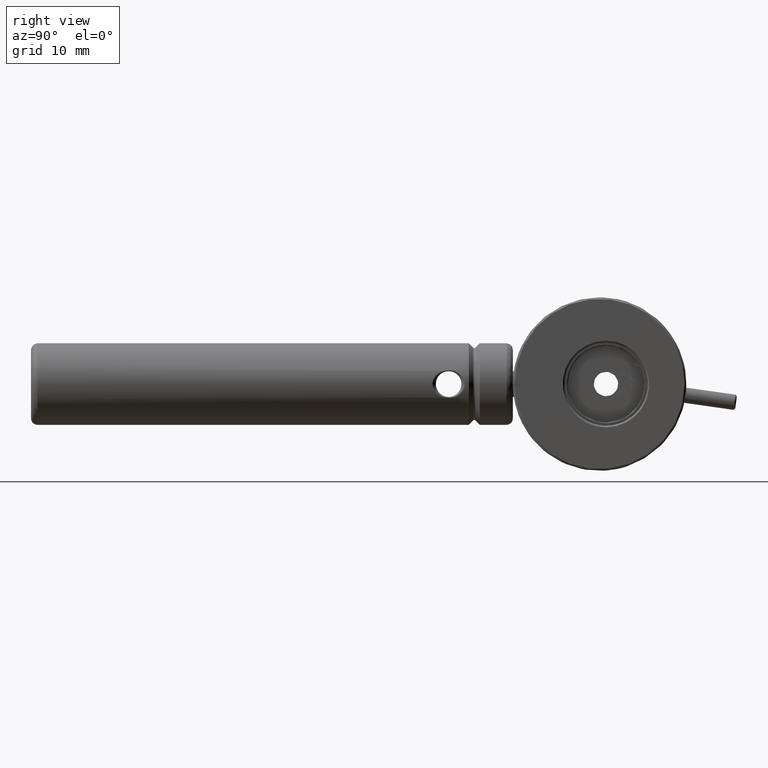
[diagram: clean part render]
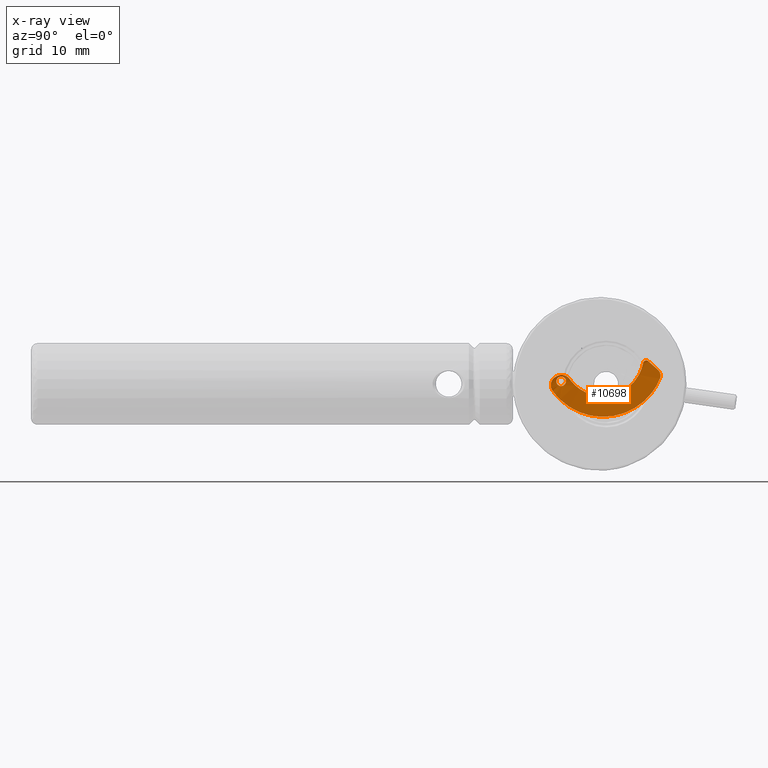
[diagram: x-ray — body ghosted, one internal face saturated and labeled with its STEP entity id]
A machine part, right view, then the same camera in x-ray: the body is ghosted and one INTERNAL B-rep face — a face not visible from any outside direction — is saturated and labeled: STEP entity #10698.
In plain terms, the highlighted planar face has unit normal (1, 0, 0).
Its self-contained STEP definition (entity closure, byte-faithful):
#18 = CARTESIAN_POINT ( 'NONE',  ( 4.134389209459748749, -0.3309700505462234155, -29.90294478753381568 ) ) ;
#44 = CARTESIAN_POINT ( 'NONE',  ( 4.209389209459748038, 11.53287536385122891, -26.61470385793699123 ) ) ;
#47 = CARTESIAN_POINT ( 'NONE',  ( 4.284389209459748216, -1.775680032492571003, -32.97902042832691905 ) ) ;
#54 = CARTESIAN_POINT ( 'NONE',  ( 4.284389209459747327, 12.06381717960713829, -31.52353523066276608 ) ) ;
#72 = CARTESIAN_POINT ( 'NONE',  ( 4.209389209459748038, 11.53287536385122891, -26.61470385793699123 ) ) ;
#73 = CARTESIAN_POINT ( 'NONE',  ( 4.134389209459748749, -0.001683951558443235819, -30.23789130076048792 ) ) ;
#118 = CARTESIAN_POINT ( 'NONE',  ( 4.284389209459747327, 13.35724633702866271, -28.42044901124513956 ) ) ;
#134 = CARTESIAN_POINT ( 'NONE',  ( 4.134389209459749637, 0.3227295016149438478, -30.52999766902324552 ) ) ;
#173 = CARTESIAN_POINT ( 'NONE',  ( 4.284389209459747327, 2.911488783379804435, -35.14886943573260680 ) ) ;
#238 = CARTESIAN_POINT ( 'NONE',  ( 4.284389209459748216, 13.38566703116448409, -28.51033356918940953 ) ) ;
#250 = ORIENTED_EDGE ( 'NONE', *, *, #5402, .F. ) ;
#294 = CARTESIAN_POINT ( 'NONE',  ( 4.284389209459747327, 13.42014298329969968, -29.00759932906902350 ) ) ;
#354 = CARTESIAN_POINT ( 'NONE',  ( 4.284389209459747327, 13.39271227548522880, -29.15484073054876646 ) ) ;
#473 = ORIENTED_EDGE ( 'NONE', *, *, #11508, .F. ) ;
#586 = CARTESIAN_POINT ( 'NONE',  ( 4.284389209459748216, -2.081752349696528004, -28.74346746129045016 ) ) ;
#775 = EDGE_CURVE ( 'NONE', #2590, #11444, #6406, .T. ) ;
#841 = B_SPLINE_CURVE_WITH_KNOTS ( 'NONE', 3,
 ( #9183, #7221, #1787, #72 ),
 .UNSPECIFIED., .F., .F.,
 ( 4, 4 ),
 ( 0.000000000000000000, 1.000000000000000000 ),
 .UNSPECIFIED. ) ;
#845 = CARTESIAN_POINT ( 'NONE',  ( 4.134389209459748749, 3.872416330809026253, -32.04470640214832144 ) ) ;
#943 = CARTESIAN_POINT ( 'NONE',  ( 4.284389209459748216, 11.85877373959887926, -31.78266134384898933 ) ) ;
#1008 = CARTESIAN_POINT ( 'NONE',  ( 4.134389209459748749, 9.942266229406181210, -28.91423452764975721 ) ) ;
#1022 = CARTESIAN_POINT ( 'NONE',  ( 4.134389209459748749, 4.947442641856741652, -32.02889801677270043 ) ) ;
#1107 = CARTESIAN_POINT ( 'NONE',  ( 4.284389209459747327, -2.793532869852088485, -28.96838546970037953 ) ) ;
#1119 = CARTESIAN_POINT ( 'NONE',  ( 4.134389209459747860, -2.189442020362582841, -30.49266721107752431 ) ) ;
#1127 = CARTESIAN_POINT ( 'NONE',  ( 4.134389209459748749, 9.328074295452159603, -29.80790064011744178 ) ) ;
#1222 = B_SPLINE_CURVE_WITH_KNOTS ( 'NONE', 3,
 ( #44, #8663, #8447, #3961, #8560, #5923, #8611, #3064, #8500, #9333 ),
 .UNSPECIFIED., .F., .F.,
 ( 4, 2, 2, 2, 4 ),
 ( 0.000000000000000000, 0.2500000000000000000, 0.5000000000000000000, 0.7500000000000000000, 1.000000000000000000 ),
 .UNSPECIFIED. ) ;
#1237 = CARTESIAN_POINT ( 'NONE',  ( 4.134389209459748749, 7.561737153812784662, -31.28428219642291452 ) ) ;
#1404 = CARTESIAN_POINT ( 'NONE',  ( 4.284389209459749104, -1.660955965162871806, -28.76715948988344351 ) ) ;
#1575 = CARTESIAN_POINT ( 'NONE',  ( 4.284389209459746439, -0.2829318885757580726, -34.06999033790363995 ) ) ;
#1625 = B_SPLINE_CURVE_WITH_KNOTS ( 'NONE', 3,
 ( #2777, #1119, #6422, #6544, #4579, #6603, #10115, #11122, #8403, #5655 ),
 .UNSPECIFIED., .F., .F.,
 ( 4, 2, 2, 2, 4 ),
 ( 0.000000000000000000, 0.2500000000000000000, 0.5000000000000000000, 0.7500000000000000000, 1.000000000000000000 ),
 .UNSPECIFIED. ) ;
#1649 = CARTESIAN_POINT ( 'NONE',  ( 4.284389209459748216, -3.678576029199008612, -30.15535420923015764 ) ) ;
#1730 = CARTESIAN_POINT ( 'NONE',  ( 4.134389209459747860, 3.306350701035032813, -31.94441890351051683 ) ) ;
#1734 = CARTESIAN_POINT ( 'NONE',  ( 4.134389209459748749, 4.947442641856741652, -32.02889801677270043 ) ) ;
#1787 = CARTESIAN_POINT ( 'NONE',  ( 4.284389209459747327, 12.03162968237498376, -27.05889279910989487 ) ) ;
#1815 = CARTESIAN_POINT ( 'NONE',  ( 4.284389209459747327, -3.156089213020860207, -31.54272849285429814 ) ) ;
#1898 = CARTESIAN_POINT ( 'NONE',  ( 4.134389209459748749, 9.862163449711479402, -29.04798773407492618 ) ) ;
#1937 = CARTESIAN_POINT ( 'NONE',  ( 4.284389209459747327, -3.561479917151381347, -29.72525265011231710 ) ) ;
#2001 = CARTESIAN_POINT ( 'NONE',  ( 4.284389209459747327, 11.96134019194015252, -31.65456415424835868 ) ) ;
#2008 = CARTESIAN_POINT ( 'NONE',  ( 4.134389209459748749, 6.624855190189506970, -31.66770650345844373 ) ) ;
#2245 = CARTESIAN_POINT ( 'NONE',  ( 4.284389209459747327, -2.270535692337718459, -28.76093296499469076 ) ) ;
#2353 = CARTESIAN_POINT ( 'NONE',  ( 4.209389209459748038, -0.7418880610999190051, -29.36930212669630080 ) ) ;
#2406 = CARTESIAN_POINT ( 'NONE',  ( 4.134389209459748749, -1.354384977549951019, -30.06801024032385072 ) ) ;
#2590 = VERTEX_POINT ( 'NONE', #4323 ) ;
#2664 = CARTESIAN_POINT ( 'NONE',  ( 4.284389209459748216, 9.550679817949589534, -33.85453369463002815 ) ) ;
#2692 = ORIENTED_EDGE ( 'NONE', *, *, #6003, .F. ) ;
#2777 = CARTESIAN_POINT ( 'NONE',  ( 4.134389209459748749, -1.993685719852399396, -30.47741555535359126 ) ) ;
#2864 = CARTESIAN_POINT ( 'NONE',  ( 4.134389209459750525, 0.2979779620119864525, -30.50884311429219764 ) ) ;
#2899 = CARTESIAN_POINT ( 'NONE',  ( 4.284389209459745551, 10.59960833504224631, -33.05983296242331448 ) ) ;
#2906 = CARTESIAN_POINT ( 'NONE',  ( 4.284389209459747327, 13.31836297844598604, -28.33459311816970683 ) ) ;
#3026 = CARTESIAN_POINT ( 'NONE',  ( 4.209389209459748038, 13.02913831942250056, -27.94727068145570570 ) ) ;
#3064 = CARTESIAN_POINT ( 'NONE',  ( 4.284389209459748216, 10.76495619345340415, -26.72622094159164874 ) ) ;
#3209 = AXIS2_PLACEMENT_3D ( 'NONE', #7881, #11506, #7826 ) ;
#3363 = CARTESIAN_POINT ( 'NONE',  ( 4.134389209459748749, -1.319460420325664796, -29.47566823245031387 ) ) ;
#3370 = CARTESIAN_POINT ( 'NONE',  ( 4.284389209459748216, -2.431295474410883894, -28.80364786432926039 ) ) ;
#3430 = CARTESIAN_POINT ( 'NONE',  ( 4.284389209459749104, 0.9173878240280927132, -34.60946496684858431 ) ) ;
#3453 = EDGE_CURVE ( 'NONE', #11444, #2590, #1625, .T. ) ;
#3480 = CARTESIAN_POINT ( 'NONE',  ( 4.134389209459749637, -1.713614079631466502, -29.03212379065805138 ) ) ;
#3545 = ORIENTED_EDGE ( 'NONE', *, *, #9871, .T. ) ;
#3553 = CARTESIAN_POINT ( 'NONE',  ( 4.209389209459748038, 13.34230277311566759, -29.29629330479995630 ) ) ;
#3554 = B_SPLINE_CURVE_WITH_KNOTS ( 'NONE', 3,
 ( #8212, #1815, #5464, #9095, #8086, #4508, #47, #6114, #9744, #1575, #3430, #10697, #9799, #8920, #7439, #173, #11064, #3675, #5413, #5653, #5592, #7316, #8156, #8336, #9042, #11782, #4634, #2664, #2899, #5472, #6300, #943, #2001, #6541, #54, #6483, #3619, #3553 ),
 .UNSPECIFIED., .F., .F.,
 ( 4, 1, 1, 1, 2, 2, 2, 1, 1, 1, 2, 2, 2, 1, 1, 1, 2, 2, 2, 1, 1, 1, 2, 2, 4 ),
 ( 0.000000000000000000, 0.06249999999999626688, 0.09374999999999439337, 0.1093749999999934636, 0.1171874999999930056, 0.1249999999999925338, 0.2499999999999946709, 0.3124999999999957812, 0.3437499999999961697, 0.3593749999999963363, 0.3671874999999963363, 0.3749999999999962808, 0.4999999999999948930, 0.5624999999999942268, 0.5937499999999938938, 0.6093749999999936717, 0.6171874999999936717, 0.6249999999999935607, 0.7499999999999924505, 0.8124999999999916733, 0.8437499999999913403, 0.8593749999999911182, 0.8671874999999913403, 0.8749999999999916733, 1.000000000000000000 ),
 .UNSPECIFIED. ) ;
#3619 = CARTESIAN_POINT ( 'NONE',  ( 4.284389209459747327, 13.02299882543045406, -30.07976592429267981 ) ) ;
#3639 = CARTESIAN_POINT ( 'NONE',  ( 4.134389209459750525, 0.7781641421455078866, -30.91288174440323644 ) ) ;
#3675 = CARTESIAN_POINT ( 'NONE',  ( 4.284389209459747327, 3.855909933160590164, -35.29189937841742619 ) ) ;
#3745 = CARTESIAN_POINT ( 'NONE',  ( 4.284389209459747327, 13.27397389341639311, -28.24910886975350977 ) ) ;
#3810 = CARTESIAN_POINT ( 'NONE',  ( 4.284389209459748216, 13.29011570284712285, -28.27825111497917376 ) ) ;
#3919 = CARTESIAN_POINT ( 'NONE',  ( 4.284389209459746439, 13.11959460416090550, -28.02783074850296074 ) ) ;
#3961 = CARTESIAN_POINT ( 'NONE',  ( 4.284389209459747327, 11.21254862149817377, -26.48020347015619791 ) ) ;
#3979 = CARTESIAN_POINT ( 'NONE',  ( 4.209389209459748038, 13.34230277311566759, -29.29629330479995630 ) ) ;
#3982 = CARTESIAN_POINT ( 'NONE',  ( 4.134389209459749637, 8.159317082984346214, -30.90888053737445773 ) ) ;
#4098 = B_SPLINE_CURVE_WITH_KNOTS ( 'NONE', 3,
 ( #6549, #7622, #354, #5659, #294, #4704, #9172, #10177, #238, #118, #2906, #3810, #3745, #11125, #3919, #3026 ),
 .UNSPECIFIED., .F., .F.,
 ( 4, 1, 2, 2, 2, 1, 2, 2, 4 ),
 ( 0.000000000000000000, 0.1250000000000041633, 0.1875000000000027200, 0.2500000000000012768, 0.5000000000000025535, 0.6249999999999998890, 0.6874999999999980016, 0.7499999999999961142, 1.000000000000000000 ),
 .UNSPECIFIED. ) ;
#4147 = CARTESIAN_POINT ( 'NONE',  ( 4.284389209459747327, -2.013393963355786909, -28.73958939877647367 ) ) ;
#4208 = CARTESIAN_POINT ( 'NONE',  ( 4.284389209459748216, -0.9787892789496069890, -29.10647850367476153 ) ) ;
#4251 = EDGE_LOOP ( 'NONE', ( #473, #250, #11350, #4686, #8756, #2692, #3545, #4325 ) ) ;
#4262 = CARTESIAN_POINT ( 'NONE',  ( 4.134389209459749637, -1.609657094278000189, -30.36642055379877192 ) ) ;
#4267 = CARTESIAN_POINT ( 'NONE',  ( 4.284389209459747327, -2.057989771632283915, -28.74175827772800673 ) ) ;
#4323 = CARTESIAN_POINT ( 'NONE',  ( 4.134389209459748749, -2.110199786994817472, -28.98194757770982832 ) ) ;
#4325 = ORIENTED_EDGE ( 'NONE', *, *, #5919, .T. ) ;
#4429 = VERTEX_POINT ( 'NONE', #6440 ) ;
#4488 = VERTEX_POINT ( 'NONE', #5839 ) ;
#4508 = CARTESIAN_POINT ( 'NONE',  ( 4.284389209459747327, -1.855632089759796433, -32.91012869242015881 ) ) ;
#4579 = CARTESIAN_POINT ( 'NONE',  ( 4.134389209459748749, -2.784425086521552739, -29.98369490061310572 ) ) ;
#4597 = CARTESIAN_POINT ( 'NONE',  ( 4.134389209459750525, 1.245228033939395740, -31.21118712411052698 ) ) ;
#4606 = EDGE_CURVE ( 'NONE', #4488, #10100, #7452, .T. ) ;
#4634 = CARTESIAN_POINT ( 'NONE',  ( 4.284389209459747327, 8.792147892349150951, -34.28106245208892489 ) ) ;
#4642 = CARTESIAN_POINT ( 'NONE',  ( 4.134389209459749637, 9.975777535865784529, -28.85625958715364447 ) ) ;
#4654 = CARTESIAN_POINT ( 'NONE',  ( 4.134389209459748749, 2.862497319151420250, -31.84968012540116078 ) ) ;
#4686 = ORIENTED_EDGE ( 'NONE', *, *, #6273, .F. ) ;
#4704 = CARTESIAN_POINT ( 'NONE',  ( 4.284389209459746439, 13.42375681021078471, -28.97909823074123636 ) ) ;
#4718 = CARTESIAN_POINT ( 'NONE',  ( 4.134389209459748749, 3.099885696457829187, -31.90381457634031293 ) ) ;
#4934 = CARTESIAN_POINT ( 'NONE',  ( 4.284389209459747327, -0.7907392195259906886, -29.30065217346524165 ) ) ;
#4989 = CARTESIAN_POINT ( 'NONE',  ( 4.284389209459748216, -1.946642947688921543, -28.73781699648277410 ) ) ;
#5096 = CARTESIAN_POINT ( 'NONE',  ( 4.134389209459747860, -1.914443486484633139, -28.96669592198588461 ) ) ;
#5104 = B_SPLINE_CURVE_WITH_KNOTS ( 'NONE', 3,
 ( #6318, #9006, #18, #73, #5434, #8297, #2864, #134, #3639, #4597, #7403, #11028, #4654, #4718, #9184, #7156, #1730, #845, #6505, #1022 ),
 .UNSPECIFIED., .F., .F.,
 ( 4, 1, 1, 1, 2, 2, 2, 1, 1, 1, 2, 2, 4 ),
 ( 0.000000000000000000, 0.1250000000000055789, 0.1875000000000089928, 0.2187500000000112410, 0.2343750000000118239, 0.2500000000000124345, 0.5000000000000078826, 0.6250000000000065503, 0.6875000000000062172, 0.7187500000000062172, 0.7343750000000061062, 0.7500000000000059952, 1.000000000000000000 ),
 .UNSPECIFIED. ) ;
#5161 = CARTESIAN_POINT ( 'NONE',  ( 4.134389209459748749, -1.797929419342214175, -30.46216389962965110 ) ) ;
#5402 = EDGE_CURVE ( 'NONE', #6931, #9112, #841, .T. ) ;
#5413 = CARTESIAN_POINT ( 'NONE',  ( 4.284389209459747327, 4.695035104187377684, -35.30721641830412949 ) ) ;
#5434 = CARTESIAN_POINT ( 'NONE',  ( 4.134389209459747860, 0.1711782081196915051, -30.39774547526338466 ) ) ;
#5464 = CARTESIAN_POINT ( 'NONE',  ( 4.284389209459746439, -2.760541227102413675, -32.03336654888448010 ) ) ;
#5472 = CARTESIAN_POINT ( 'NONE',  ( 4.284389209459749104, 11.09256957312478775, -32.63074786740983058 ) ) ;
#5592 = CARTESIAN_POINT ( 'NONE',  ( 4.284389209459748216, 6.575355852582820404, -35.05237088396147982 ) ) ;
#5653 = CARTESIAN_POINT ( 'NONE',  ( 4.284389209459747327, 5.955201311152031884, -35.16422415750748343 ) ) ;
#5655 = CARTESIAN_POINT ( 'NONE',  ( 4.134389209459748749, -2.110199786994817472, -28.98194757770982832 ) ) ;
#5659 = CARTESIAN_POINT ( 'NONE',  ( 4.284389209459746439, 13.41048377414849035, -29.06682667978826018 ) ) ;
#5690 = ORIENTED_EDGE ( 'NONE', *, *, #775, .F. ) ;
#5721 = CARTESIAN_POINT ( 'NONE',  ( 4.209389209459748038, 10.70956796024803026, -26.89246024996013418 ) ) ;
#5773 = CARTESIAN_POINT ( 'NONE',  ( 4.134389209459749637, 5.782988890814470651, -31.92414316555267817 ) ) ;
#5828 = CARTESIAN_POINT ( 'NONE',  ( 4.284389209459747327, -1.027577307205505885, -29.06699751162603462 ) ) ;
#5839 = CARTESIAN_POINT ( 'NONE',  ( 4.209389209459748038, -2.689270246364122485, -28.92096912025860433 ) ) ;
#5909 = EDGE_CURVE ( 'NONE', #9087, #6931, #4098, .T. ) ;
#5919 = EDGE_CURVE ( 'NONE', #10706, #8437, #10494, .T. ) ;
#5923 = CARTESIAN_POINT ( 'NONE',  ( 4.284389209459748216, 10.95568112126179194, -26.54284508548087018 ) ) ;
#5992 = CARTESIAN_POINT ( 'NONE',  ( 4.284389209459747327, -1.401372133385236252, -28.83707751965591015 ) ) ;
#6003 = EDGE_CURVE ( 'NONE', #4429, #4488, #6521, .T. ) ;
#6114 = CARTESIAN_POINT ( 'NONE',  ( 4.284389209459746439, -1.736887053930355140, -33.01192141567877059 ) ) ;
#6182 = CARTESIAN_POINT ( 'NONE',  ( 4.284389209459747327, -3.527935579755835160, -31.01417281461408137 ) ) ;
#6192 = CARTESIAN_POINT ( 'NONE',  ( 4.209389209459748038, 10.70956796024803026, -26.89246024996013418 ) ) ;
#6273 = EDGE_CURVE ( 'NONE', #10100, #9087, #3554, .T. ) ;
#6300 = CARTESIAN_POINT ( 'NONE',  ( 4.284389209459748216, 11.61256073174278924, -32.07461281430139621 ) ) ;
#6318 = CARTESIAN_POINT ( 'NONE',  ( 4.209389209459748038, -0.7418880610999190051, -29.36930212669630080 ) ) ;
#6406 = B_SPLINE_CURVE_WITH_KNOTS ( 'NONE', 3,
 ( #9453, #5096, #3480, #7123, #3363, #11649, #2406, #4262, #5161, #8853 ),
 .UNSPECIFIED., .F., .F.,
 ( 4, 2, 2, 2, 4 ),
 ( 0.000000000000000000, 0.2500000000000000000, 0.5000000000000000000, 0.7500000000000000000, 1.000000000000000000 ),
 .UNSPECIFIED. ) ;
#6422 = CARTESIAN_POINT ( 'NONE',  ( 4.134389209459749637, -2.390271427215749700, -30.42723934240536465 ) ) ;
#6440 = CARTESIAN_POINT ( 'NONE',  ( 4.209389209459748038, -0.7418880610999190051, -29.36930212669630080 ) ) ;
#6474 = CARTESIAN_POINT ( 'NONE',  ( 4.284389209459747327, -3.688464521975596266, -30.37350924305338751 ) ) ;
#6483 = CARTESIAN_POINT ( 'NONE',  ( 4.284389209459747327, 12.60749735655402759, -30.80815279295863363 ) ) ;
#6492 = CARTESIAN_POINT ( 'NONE',  ( 4.134389209459749637, 10.00950342527635151, -28.79695768608966588 ) ) ;
#6505 = CARTESIAN_POINT ( 'NONE',  ( 4.134389209459749637, 4.408347651675597056, -32.07089968502712196 ) ) ;
#6521 = B_SPLINE_CURVE_WITH_KNOTS ( 'NONE', 3,
 ( #2353, #4934, #6779, #4208, #5828, #8800, #9620, #9565, #5992, #1404, #7851, #4989, #4147, #4267, #586, #2245, #3370, #11476 ),
 .UNSPECIFIED., .F., .F.,
 ( 4, 1, 1, 2, 2, 2, 1, 1, 2, 2, 4 ),
 ( 0.000000000000000000, 0.1249999999999966971, 0.1874999999999950595, 0.2187499999999960310, 0.2499999999999970024, 0.4999999999999996669, 0.6250000000000003331, 0.6875000000000006661, 0.7187500000000009992, 0.7500000000000012212, 1.000000000000000000 ),
 .UNSPECIFIED. ) ;
#6541 = CARTESIAN_POINT ( 'NONE',  ( 4.284389209459746439, 12.02906151390800815, -31.56850488766230356 ) ) ;
#6544 = CARTESIAN_POINT ( 'NONE',  ( 4.134389209459748749, -2.688681740690672672, -30.17196722567731371 ) ) ;
#6549 = CARTESIAN_POINT ( 'NONE',  ( 4.209389209459748038, 13.34230277311566759, -29.29629330479995630 ) ) ;
#6603 = CARTESIAN_POINT ( 'NONE',  ( 4.134389209459749637, -2.814928397969427287, -29.59218229959273572 ) ) ;
#6724 = CARTESIAN_POINT ( 'NONE',  ( 4.134389209459748749, 6.346981715361437182, -31.76453764418080183 ) ) ;
#6774 = CARTESIAN_POINT ( 'NONE',  ( 4.209389209459748038, 11.53287536385122891, -26.61470385793699123 ) ) ;
#6779 = CARTESIAN_POINT ( 'NONE',  ( 4.284389209459746439, -0.8714926706643849608, -29.20506584231066327 ) ) ;
#6931 = VERTEX_POINT ( 'NONE', #10364 ) ;
#7103 = PLANE ( 'NONE',  #3209 ) ;
#7123 = CARTESIAN_POINT ( 'NONE',  ( 4.134389209459748749, -1.415203766156543086, -29.28739590738610232 ) ) ;
#7156 = CARTESIAN_POINT ( 'NONE',  ( 4.134389209459748749, 3.270890547868746889, -31.93784901967420353 ) ) ;
#7221 = CARTESIAN_POINT ( 'NONE',  ( 4.284389209459747327, 12.53038400089874216, -27.50308174028279851 ) ) ;
#7316 = CARTESIAN_POINT ( 'NONE',  ( 4.284389209459747327, 7.281494500661899849, -34.85125039764934485 ) ) ;
#7387 = CARTESIAN_POINT ( 'NONE',  ( 4.134389209459749637, 9.997936527668468187, -28.81746470732456089 ) ) ;
#7403 = CARTESIAN_POINT ( 'NONE',  ( 4.134389209459750525, 2.006211262293307485, -31.56685010252157397 ) ) ;
#7439 = CARTESIAN_POINT ( 'NONE',  ( 4.284389209459748216, 2.803496630217801933, -35.13070161611020126 ) ) ;
#7446 = CARTESIAN_POINT ( 'NONE',  ( 4.134389209459747860, 10.35003951477128403, -28.18628483731416523 ) ) ;
#7452 = B_SPLINE_CURVE_WITH_KNOTS ( 'NONE', 3,
 ( #1107, #9212, #11548, #10105, #1937, #1649, #6474, #8870, #6182, #11611 ),
 .UNSPECIFIED., .F., .F.,
 ( 4, 2, 2, 2, 4 ),
 ( 0.000000000000000000, 0.2500000000000000000, 0.5000000000000000000, 0.7500000000000000000, 1.000000000000000000 ),
 .UNSPECIFIED. ) ;
#7622 = CARTESIAN_POINT ( 'NONE',  ( 4.284389209459745551, 13.36509272201264764, -29.24037385535416789 ) ) ;
#7826 = DIRECTION ( 'NONE',  ( 7.675031713389348162E-18, -0.06016631361091300673, -0.9981883663449865329 ) ) ;
#7851 = CARTESIAN_POINT ( 'NONE',  ( 4.284389209459747327, -1.791889455034739731, -28.74404780406601034 ) ) ;
#7881 = CARTESIAN_POINT ( 'NONE',  ( 4.134389209459748749, 4.452257856501453226, -25.67315911178669907 ) ) ;
#7923 = CARTESIAN_POINT ( 'NONE',  ( 4.209389209459748038, -3.399384389648936633, -31.19690005778213404 ) ) ;
#8086 = CARTESIAN_POINT ( 'NONE',  ( 4.284389209459748216, -1.974603762505123372, -32.80591281991697628 ) ) ;
#8156 = CARTESIAN_POINT ( 'NONE',  ( 4.284389209459749104, 7.630220078803891859, -34.73303390436615246 ) ) ;
#8212 = CARTESIAN_POINT ( 'NONE',  ( 4.209389209459748038, -3.399384389648936633, -31.19690005778213404 ) ) ;
#8297 = CARTESIAN_POINT ( 'NONE',  ( 4.134389209459749637, 0.2470232287355188794, -30.46462174674098478 ) ) ;
#8336 = CARTESIAN_POINT ( 'NONE',  ( 4.284389209459746439, 7.778743095315270750, -34.67858621078897130 ) ) ;
#8403 = CARTESIAN_POINT ( 'NONE',  ( 4.134389209459748749, -2.305956087505002472, -28.99719923343376493 ) ) ;
#8408 = CARTESIAN_POINT ( 'NONE',  ( 4.134389209459750525, 6.860848279133556105, -31.57568739579620498 ) ) ;
#8437 = VERTEX_POINT ( 'NONE', #6192 ) ;
#8447 = CARTESIAN_POINT ( 'NONE',  ( 4.284389209459747327, 11.38788296558719715, -26.51613445019341953 ) ) ;
#8500 = CARTESIAN_POINT ( 'NONE',  ( 4.284389209459747327, 10.72678437021164299, -26.80410765793603645 ) ) ;
#8517 = CARTESIAN_POINT ( 'NONE',  ( 4.134389209459747860, 6.821642894330186557, -31.59154760399896489 ) ) ;
#8560 = CARTESIAN_POINT ( 'NONE',  ( 4.284389209459747327, 11.12532850063233880, -26.48580775846854252 ) ) ;
#8611 = CARTESIAN_POINT ( 'NONE',  ( 4.284389209459747327, 10.88321066649320024, -26.59137926026230758 ) ) ;
#8663 = CARTESIAN_POINT ( 'NONE',  ( 4.284389209459747327, 11.46592719951930484, -26.55508004492201835 ) ) ;
#8756 = ORIENTED_EDGE ( 'NONE', *, *, #4606, .F. ) ;
#8800 = CARTESIAN_POINT ( 'NONE',  ( 4.284389209459748216, -1.060725718834379938, -29.04129256681788718 ) ) ;
#8853 = CARTESIAN_POINT ( 'NONE',  ( 4.134389209459748749, -1.993685719852399396, -30.47741555535359126 ) ) ;
#8870 = CARTESIAN_POINT ( 'NONE',  ( 4.284389209459748216, -3.611461844242545016, -30.81294920303472296 ) ) ;
#8920 = CARTESIAN_POINT ( 'NONE',  ( 4.284389209459748216, 2.641906675997045539, -35.10211046670381307 ) ) ;
#9006 = CARTESIAN_POINT ( 'NONE',  ( 4.134389209459747860, -0.5850354719040399276, -29.58972520896085001 ) ) ;
#9042 = CARTESIAN_POINT ( 'NONE',  ( 4.284389209459749104, 7.877551594613452224, -34.64144697458861089 ) ) ;
#9087 = VERTEX_POINT ( 'NONE', #3979 ) ;
#9095 = CARTESIAN_POINT ( 'NONE',  ( 4.284389209459747327, -2.245509440155650793, -32.55659457024142256 ) ) ;
#9112 = VERTEX_POINT ( 'NONE', #6774 ) ;
#9172 = CARTESIAN_POINT ( 'NONE',  ( 4.284389209459747327, 13.43757029672921099, -28.82133209219214365 ) ) ;
#9183 = CARTESIAN_POINT ( 'NONE',  ( 4.209389209459748038, 13.02913831942250056, -27.94727068145570570 ) ) ;
#9184 = CARTESIAN_POINT ( 'NONE',  ( 4.134389209459748749, 3.202386838497545796, -31.92456227916107991 ) ) ;
#9212 = CARTESIAN_POINT ( 'NONE',  ( 4.284389209459747327, -2.996572429965680850, -29.06072339877581712 ) ) ;
#9269 = CARTESIAN_POINT ( 'NONE',  ( 4.134389209459748749, -1.993685719852399396, -30.47741555535359126 ) ) ;
#9333 = CARTESIAN_POINT ( 'NONE',  ( 4.209389209459748038, 10.70956796024803026, -26.89246024996013418 ) ) ;
#9350 = CARTESIAN_POINT ( 'NONE',  ( 4.134389209459749637, 6.879300130249003331, -31.56812438790836950 ) ) ;
#9401 = CARTESIAN_POINT ( 'NONE',  ( 4.134389209459747860, 6.762761193242184277, -31.61503383808817702 ) ) ;
#9453 = CARTESIAN_POINT ( 'NONE',  ( 4.134389209459748749, -2.110199786994817472, -28.98194757770982832 ) ) ;
#9565 = CARTESIAN_POINT ( 'NONE',  ( 4.284389209459748216, -1.240837040405190494, -28.91260439076996747 ) ) ;
#9620 = CARTESIAN_POINT ( 'NONE',  ( 4.284389209459748216, -1.076555179556349273, -29.02949954760577356 ) ) ;
#9744 = CARTESIAN_POINT ( 'NONE',  ( 4.284389209459749992, -1.020923692301495045, -33.60883357418022399 ) ) ;
#9799 = CARTESIAN_POINT ( 'NONE',  ( 4.284389209459749992, 2.267651378137703233, -35.02602184494580939 ) ) ;
#9871 = EDGE_CURVE ( 'NONE', #4429, #10706, #5104, .T. ) ;
#10100 = VERTEX_POINT ( 'NONE', #7923 ) ;
#10105 = CARTESIAN_POINT ( 'NONE',  ( 4.284389209459747327, -3.459704998873568194, -29.53183129950730645 ) ) ;
#10115 = CARTESIAN_POINT ( 'NONE',  ( 4.134389209459748749, -2.749500529297266738, -29.39135289273957241 ) ) ;
#10119 = CARTESIAN_POINT ( 'NONE',  ( 4.134389209459747860, 10.57995460128210041, -27.55762077121822884 ) ) ;
#10177 = CARTESIAN_POINT ( 'NONE',  ( 4.284389209459748216, 13.42855820017364188, -28.69547423823644650 ) ) ;
#10295 = CARTESIAN_POINT ( 'NONE',  ( 4.134389209459747860, 5.285430684247071298, -32.00256488088940188 ) ) ;
#10364 = CARTESIAN_POINT ( 'NONE',  ( 4.209389209459748038, 13.02913831942250056, -27.94727068145570570 ) ) ;
#10494 = B_SPLINE_CURVE_WITH_KNOTS ( 'NONE', 3,
 ( #11186, #10295, #5773, #6724, #2008, #9401, #8517, #8408, #9350, #1237, #3982, #11246, #1127, #11013, #1898, #1008, #4642, #7387, #6492, #7446, #10119, #5721 ),
 .UNSPECIFIED., .F., .F.,
 ( 4, 1, 1, 1, 1, 2, 2, 2, 1, 1, 1, 1, 2, 2, 4 ),
 ( 0.000000000000000000, 0.1250000000000082434, 0.1875000000000119071, 0.2187500000000137668, 0.2343750000000149603, 0.2421875000000150713, 0.2500000000000152101, 0.5000000000000140998, 0.6250000000000133227, 0.6875000000000127676, 0.7187500000000125455, 0.7343750000000125455, 0.7421875000000125455, 0.7500000000000124345, 1.000000000000000000 ),
 .UNSPECIFIED. ) ;
#10611 = FACE_OUTER_BOUND ( 'NONE', #4251, .T. ) ;
#10697 = CARTESIAN_POINT ( 'NONE',  ( 4.284389209459749992, 1.530292497042044175, -34.83634084219089999 ) ) ;
#10698 = ADVANCED_FACE ( 'NONE', ( #10611, #11569 ), #7103, .F. ) ;
#10706 = VERTEX_POINT ( 'NONE', #1734 ) ;
#10826 = ORIENTED_EDGE ( 'NONE', *, *, #3453, .F. ) ;
#11013 = CARTESIAN_POINT ( 'NONE',  ( 4.134389209459748749, 9.694318965166209168, -29.30940752799548932 ) ) ;
#11028 = CARTESIAN_POINT ( 'NONE',  ( 4.134389209459748749, 2.394844381016998813, -31.71851864609328331 ) ) ;
#11064 = CARTESIAN_POINT ( 'NONE',  ( 4.284389209459746439, 2.967627291995527106, -35.15781023894246715 ) ) ;
#11122 = CARTESIAN_POINT ( 'NONE',  ( 4.134389209459749637, -2.494228412569217568, -29.09294257926463700 ) ) ;
#11125 = CARTESIAN_POINT ( 'NONE',  ( 4.284389209459747327, 13.19600878849762005, -28.11982452137714716 ) ) ;
#11186 = CARTESIAN_POINT ( 'NONE',  ( 4.134389209459748749, 4.947442641856741652, -32.02889801677270043 ) ) ;
#11195 = EDGE_LOOP ( 'NONE', ( #10826, #5690 ) ) ;
#11246 = CARTESIAN_POINT ( 'NONE',  ( 4.134389209459749637, 8.961769091771270013, -30.19344363498915129 ) ) ;
#11350 = ORIENTED_EDGE ( 'NONE', *, *, #5909, .F. ) ;
#11444 = VERTEX_POINT ( 'NONE', #9269 ) ;
#11476 = CARTESIAN_POINT ( 'NONE',  ( 4.284389209459747327, -2.585007622876157374, -28.87355277081682559 ) ) ;
#11506 = DIRECTION ( 'NONE',  ( 1.000000000000000000, 1.364793645013590294E-17, 6.866324954161879261E-18 ) ) ;
#11508 = EDGE_CURVE ( 'NONE', #9112, #8437, #1222, .T. ) ;
#11548 = CARTESIAN_POINT ( 'NONE',  ( 4.284389209459747327, -3.170820136292420877, -29.19235650776186475 ) ) ;
#11569 = FACE_BOUND ( 'NONE', #11195, .T. ) ;
#11611 = CARTESIAN_POINT ( 'NONE',  ( 4.209389209459748038, -3.399384389648936633, -31.19690005778213404 ) ) ;
#11649 = CARTESIAN_POINT ( 'NONE',  ( 4.134389209459749637, -1.288957108877789803, -29.86718083347068742 ) ) ;
#11782 = CARTESIAN_POINT ( 'NONE',  ( 4.284389209459748216, 7.925043697222418082, -34.62317058551338533 ) ) ;